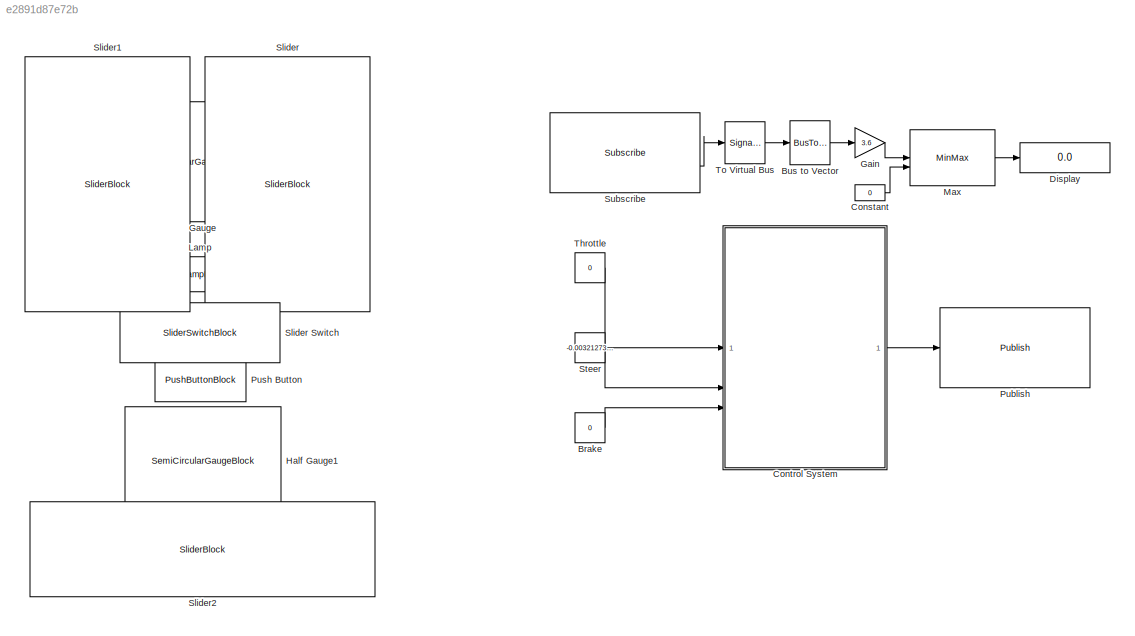
MODEL slx_e2891d87e72b
KIND model
CONFIG AbsTol = auto
CONFIG EnableMultiTasking = off
CONFIG FixedStep = .05
CONFIG MaxStep = auto
CONFIG MinStep = auto
CONFIG RelTol = 1e-3
CONFIG SampleTimeConstraint = Unconstrained
CONFIG SolverName = FixedStepDiscrete
CONFIG StartTime = 0.0
CONFIG StopTime = inf
WORKSPACE source: mxarray member
WORKSPACE SL_ROS_VariableLengthArrays_MaxSizes: object (value not decoded)
BLOCK [Constant] Brake
  Value = 0
BLOCK [BusToVector] Bus to Vector
BLOCK [Constant] Constant
  Value = 0
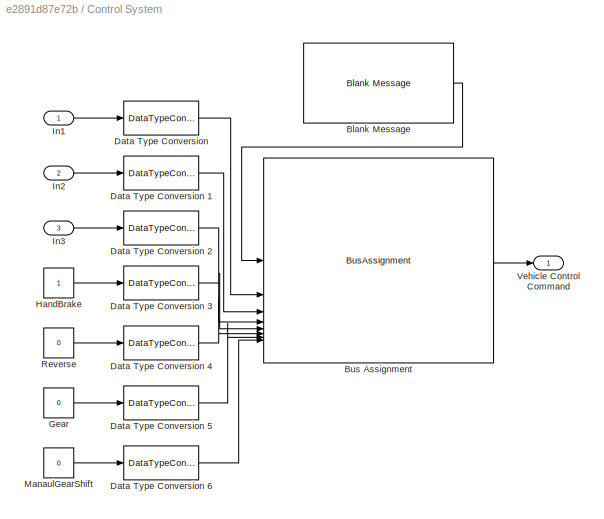
BLOCK [SubSystem] Control System
BLOCK [Reference] Control System/Blank Message  REF=ros2lib/Blank Message  (lib defined in slx_3c1549211f48)
  SourceBlock = ros2lib/Blank Message
  SourceType = ROS2 Blank Message
BLOCK [BusAssignment] Control System/Bus Assignment
  AssignedSignals = throttle,steer,brake,hand_brake,reverse,gear,manual_gear_shift
BLOCK [DataTypeConversion] Control System/Data Type Conversion
  OutDataTypeStr = single
  RndMeth = Floor
  SaturateOnIntegerOverflow = off
BLOCK [DataTypeConversion] Control System/Data Type Conversion 1
  OutDataTypeStr = single
  RndMeth = Floor
  SaturateOnIntegerOverflow = off
BLOCK [DataTypeConversion] Control System/Data Type Conversion 2
  OutDataTypeStr = single
  RndMeth = Floor
  SaturateOnIntegerOverflow = off
BLOCK [DataTypeConversion] Control System/Data Type Conversion 3
  OutDataTypeStr = boolean
  RndMeth = Floor
  SaturateOnIntegerOverflow = off
BLOCK [DataTypeConversion] Control System/Data Type Conversion 4
  OutDataTypeStr = boolean
  RndMeth = Floor
  SaturateOnIntegerOverflow = off
BLOCK [DataTypeConversion] Control System/Data Type Conversion 5
  OutDataTypeStr = int32
  RndMeth = Floor
  SaturateOnIntegerOverflow = off
BLOCK [DataTypeConversion] Control System/Data Type Conversion 6
  OutDataTypeStr = boolean
  RndMeth = Floor
  SaturateOnIntegerOverflow = off
BLOCK [Constant] Control System/Gear
  Value = 0
BLOCK [Constant] Control System/HandBrake
BLOCK [Inport] Control System/In1
BLOCK [Inport] Control System/In2
  Port = 2
BLOCK [Inport] Control System/In3
  Port = 3
BLOCK [Constant] Control System/ManaulGearShift
  Value = 0
BLOCK [Constant] Control System/Reverse
  Value = 0
BLOCK [Outport] Control System/Vehicle Control Command
BLOCK [Display] Display
  Decimation = 1
BLOCK [Gain] Gain
  Gain = 3.6
BLOCK [CircularGaugeBlock] Gauge
  LabelPosition = Hide
  ScaleMax = 120
BLOCK [SemiCircularGaugeBlock] Half Gauge1
  LabelPosition = Hide
  ScaleMax = 1
  ScaleMin = -1
BLOCK [LampBlock] Lamp
  LabelPosition = Hide
BLOCK [MinMax] Max
  Function = max
  Inputs = 2
BLOCK [Reference] Publish  REF=ros2lib/Publish  (lib defined in slx_3c1549211f48)
  SourceBlock = ros2lib/Publish
  SourceType = ROS2 Publish
BLOCK [PushButtonBlock] Push Button
  ButtonText = Handbrake
  ButtonType = Latch
  IconColor = On
  OffValue = 0.000000
BLOCK [SliderBlock] Slider
  LabelPosition = Hide
  NameLocation = left
  ScaleMax = 1
BLOCK [SliderSwitchBlock] Slider Switch
  LabelPosition = Hide
BLOCK [SliderBlock] Slider1
  LabelPosition = Hide
  NameLocation = left
  ScaleMax = 1
BLOCK [SliderBlock] Slider2
  LabelPosition = Hide
  ScaleMax = 1
  ScaleMin = -1
BLOCK [Constant] Steer
  Value = -0.003212739209386806
BLOCK [Reference] Subscribe  REF=ros2lib/Subscribe  (lib defined in slx_3c1549211f48)
  SourceBlock = ros2lib/Subscribe
  SourceType = ROS2 Subscribe
BLOCK [Constant] Throttle
  Value = 0
BLOCK [SignalConversion] To Virtual Bus
  ConversionOutput = Virtual bus
  OverrideOpt = off
LINE Brake:1 -> Control System:3
LINE Bus to Vector:1 -> Gain:1
LINE Constant:1 -> Max:2
LINE Control System/Blank Message:1 -> Control System/Bus Assignment:1
LINE Control System/Bus Assignment:1 -> Control System/Vehicle Control Command:1
LINE Control System/Data Type Conversion 1:1 -> Control System/Bus Assignment:3
LINE Control System/Data Type Conversion 2:1 -> Control System/Bus Assignment:4
LINE Control System/Data Type Conversion 3:1 -> Control System/Bus Assignment:5
LINE Control System/Data Type Conversion 4:1 -> Control System/Bus Assignment:6
LINE Control System/Data Type Conversion 5:1 -> Control System/Bus Assignment:7
LINE Control System/Data Type Conversion 6:1 -> Control System/Bus Assignment:8
LINE Control System/Data Type Conversion:1 -> Control System/Bus Assignment:2
LINE Control System/Gear:1 -> Control System/Data Type Conversion 5:1
LINE Control System/HandBrake:1 -> Control System/Data Type Conversion 3:1
LINE Control System/In1:1 -> Control System/Data Type Conversion:1
LINE Control System/In2:1 -> Control System/Data Type Conversion 1:1
LINE Control System/In3:1 -> Control System/Data Type Conversion 2:1
LINE Control System/ManaulGearShift:1 -> Control System/Data Type Conversion 6:1
LINE Control System/Reverse:1 -> Control System/Data Type Conversion 4:1
LINE Control System:1 -> Publish:1
LINE Gain:1 -> Max:1
LINE Max:1 -> Display:1
LINE Steer:1 -> Control System:2
LINE Subscribe:2 -> To Virtual Bus:1
LINE Throttle:1 -> Control System:1
LINE To Virtual Bus:1 -> Bus to Vector:1
